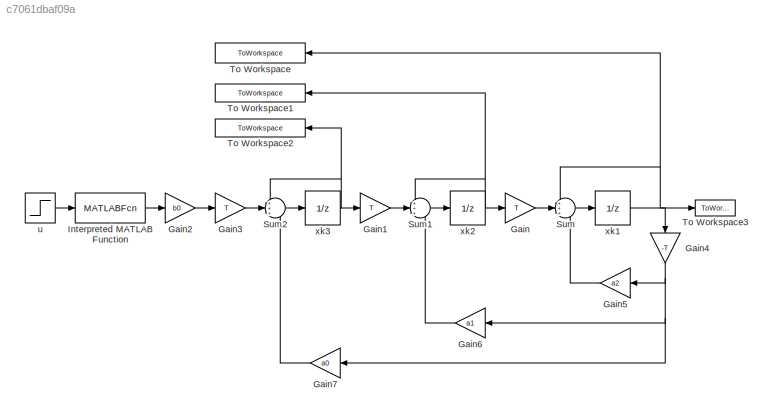
MODEL slx_c7061dbaf09a
KIND model
CONFIG AbsTol = auto
CONFIG EnableMultiTasking = off
CONFIG FixedStep = auto
CONFIG MaxStep = auto
CONFIG MinStep = auto
CONFIG RelTol = 1e-3
CONFIG SampleTimeConstraint = Unconstrained
CONFIG SolverName = VariableStepAuto
CONFIG StartTime = 0.0
CONFIG StopTime = 100
BLOCK [Gain] Gain
  Gain = T
BLOCK [Gain] Gain1
  Gain = T
BLOCK [Gain] Gain2
  Gain = b0
BLOCK [Gain] Gain3
  Gain = T
BLOCK [Gain] Gain4
  Gain = -T
  NameLocation = left
BLOCK [Gain] Gain5
  Gain = a2
  NameLocation = top
BLOCK [Gain] Gain6
  Gain = a1
  NameLocation = top
BLOCK [Gain] Gain7
  Gain = a0
  NameLocation = top
BLOCK [MATLABFcn] Interpreted MATLAB Function
  MATLABFcn = alpha1*u+alpha2*u^2+alpha3*u^3+alpha4*u^4
BLOCK [Sum] Sum
  Inputs = +++
BLOCK [Sum] Sum1
  Inputs = +++
BLOCK [Sum] Sum2
  Inputs = +++
BLOCK [ToWorkspace] To Workspace
  FixptAsFi = on
  MaxDataPoints = inf
  NameLocation = top
  SampleTime = -1
  SaveFormat = Timeseries
  VariableName = x1t
BLOCK [ToWorkspace] To Workspace1
  FixptAsFi = on
  MaxDataPoints = inf
  NameLocation = top
  SampleTime = -1
  SaveFormat = Timeseries
  VariableName = x2t
BLOCK [ToWorkspace] To Workspace2
  FixptAsFi = on
  MaxDataPoints = inf
  NameLocation = top
  SampleTime = -1
  SaveFormat = Timeseries
  VariableName = x3t
BLOCK [ToWorkspace] To Workspace3
  FixptAsFi = on
  MaxDataPoints = inf
  SampleTime = -1
  SaveFormat = Timeseries
  VariableName = yt
BLOCK [Step] u
  After = u_step_sim
  SampleTime = 0
  Time = t_u_step_sim
BLOCK [UnitDelay] xk1
  HasFrameUpgradeWarning = on
  SampleTime = T
BLOCK [UnitDelay] xk2
  HasFrameUpgradeWarning = on
  SampleTime = T
BLOCK [UnitDelay] xk3
  HasFrameUpgradeWarning = on
  SampleTime = T
LINE Gain1:1 -> Sum1:2
LINE Gain2:1 -> Gain3:1
LINE Gain3:1 -> Sum2:2
NET Gain4:1 -> Gain5:1, Gain6:1, Gain7:1
LINE Gain5:1 -> Sum:3
LINE Gain6:1 -> Sum1:3
LINE Gain7:1 -> Sum2:3
LINE Gain:1 -> Sum:2
LINE Interpreted MATLAB Function:1 -> Gain2:1
LINE Sum1:1 -> xk2:1
LINE Sum2:1 -> xk3:1
LINE Sum:1 -> xk1:1
LINE u:1 -> Interpreted MATLAB Function:1
NET xk1:1 -> Gain4:1, Sum:1, To Workspace3:1, To Workspace:1
NET xk2:1 -> Gain:1, Sum1:1, To Workspace1:1
NET xk3:1 -> Gain1:1, Sum2:1, To Workspace2:1
note: NET lines group one-source signal fan-out (src -> all destinations, sorted); 1:1 wires keep LINE
